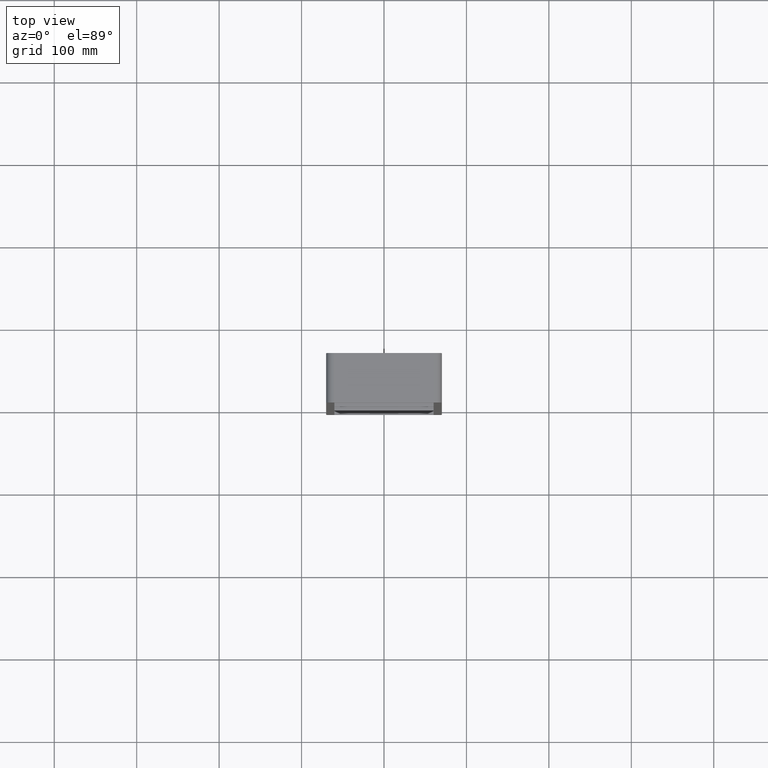
[diagram: clean part render]
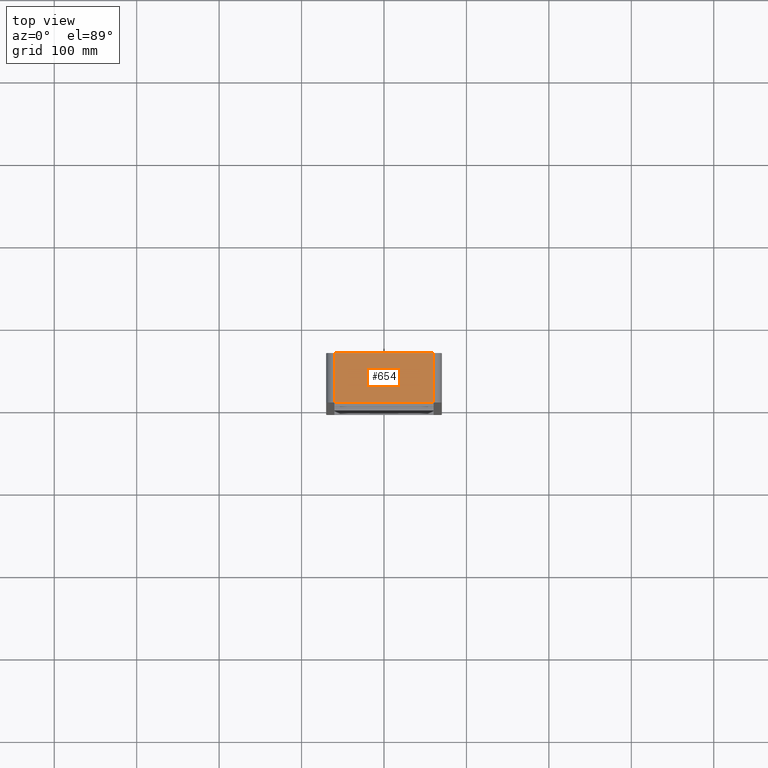
[diagram: same view with one face highlighted and labeled with its STEP entity id]
A machine part, top view. The second image highlights one B-rep face of the part: STEP entity #654.
In plain terms, the highlighted planar face has unit normal (0, 0, 1).
Its self-contained STEP definition (entity closure, byte-faithful):
#421=CARTESIAN_POINT('',(60.25,-3.0,437.00000000000011));
#422=VERTEX_POINT('',#421);
#430=CARTESIAN_POINT('',(-60.25,-3.0,437.00000000000011));
#431=VERTEX_POINT('',#430);
#432=CARTESIAN_POINT('',(60.25,-3.0,437.00000000000011));
#433=DIRECTION('',(-1.0,0.0,0.0));
#434=VECTOR('',#433,120.5);
#435=LINE('',#432,#434);
#436=EDGE_CURVE('',#422,#431,#435,.T.);
#539=CARTESIAN_POINT('',(60.25,57.0,437.00000000000011));
#540=VERTEX_POINT('',#539);
#548=CARTESIAN_POINT('',(60.25,57.0,437.00000000000011));
#549=DIRECTION('',(0.0,-1.0,0.0));
#550=VECTOR('',#549,60.0);
#551=LINE('',#548,#550);
#552=EDGE_CURVE('',#540,#422,#551,.T.);
#618=CARTESIAN_POINT('',(-60.25,57.0,437.00000000000011));
#619=VERTEX_POINT('',#618);
#629=CARTESIAN_POINT('',(-60.25,-3.0,437.00000000000011));
#630=DIRECTION('',(0.0,1.0,0.0));
#631=VECTOR('',#630,60.0);
#632=LINE('',#629,#631);
#633=EDGE_CURVE('',#431,#619,#632,.T.);
#638=CARTESIAN_POINT('',(-70.25,0.0,437.00000000000011));
#639=DIRECTION('',(0.0,0.0,1.0));
#640=DIRECTION('',(1.0,0.0,0.0));
#641=AXIS2_PLACEMENT_3D('',#638,#639,#640);
#642=PLANE('',#641);
#643=ORIENTED_EDGE('',*,*,#552,.F.);
#644=CARTESIAN_POINT('',(-60.25,57.0,437.00000000000011));
#645=DIRECTION('',(1.0,0.0,0.0));
#646=VECTOR('',#645,120.5);
#647=LINE('',#644,#646);
#648=EDGE_CURVE('',#619,#540,#647,.T.);
#649=ORIENTED_EDGE('',*,*,#648,.F.);
#650=ORIENTED_EDGE('',*,*,#633,.F.);
#651=ORIENTED_EDGE('',*,*,#436,.F.);
#652=EDGE_LOOP('',(#643,#649,#650,#651));
#653=FACE_OUTER_BOUND('',#652,.T.);
#654=ADVANCED_FACE('',(#653),#642,.T.);